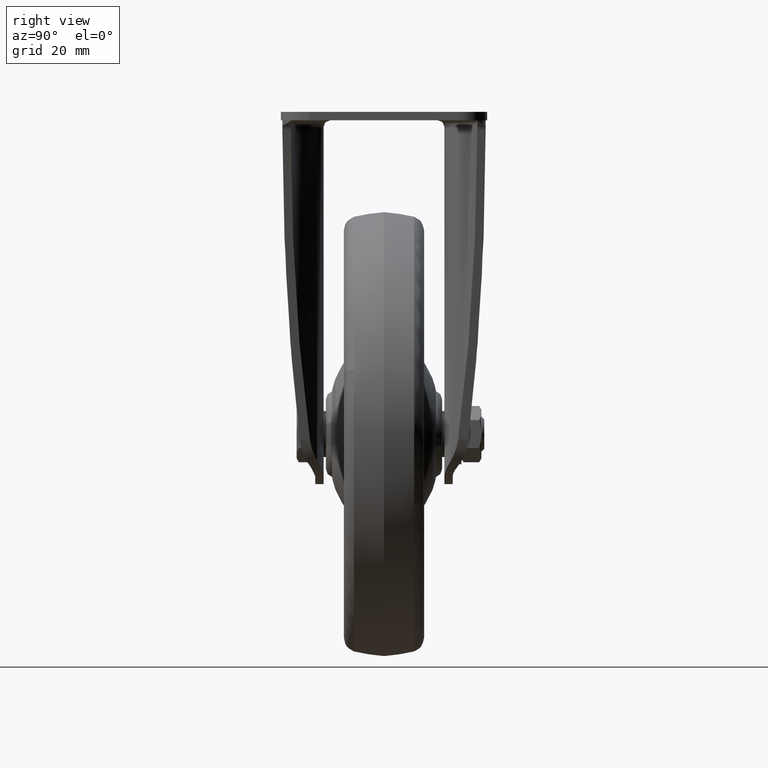
[diagram: clean part render]
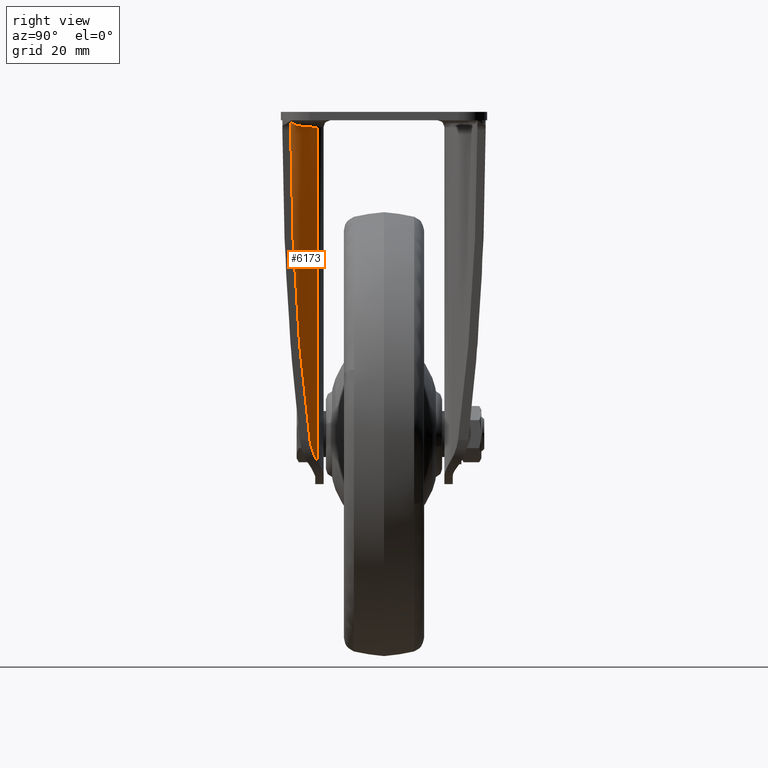
[diagram: same view with one face highlighted and labeled with its STEP entity id]
A machine part, right view. The second image highlights one B-rep face of the part: STEP entity #6173.
In plain terms, the highlighted face is a freeform B-spline surface patch.
Its self-contained STEP definition (entity closure, byte-faithful):
#6050=CARTESIAN_POINT('',(42.637720913554681,-32.400644710330866,-124.621251208632020));
#6051=CARTESIAN_POINT('',(42.637720913554681,-32.400644710330866,0.006965271787664));
#6052=CARTESIAN_POINT('',(26.281486023279058,-34.182363450477844,-124.621251208632070));
#6053=CARTESIAN_POINT('',(26.281486023279058,-34.182363450477844,0.006965271787664));
#6054=CARTESIAN_POINT('',(14.762208308281577,-22.434717627606652,-124.621251208632060));
#6055=CARTESIAN_POINT('',(14.762208308281577,-22.434717627606652,0.006965271787664));
#6063=(BOUNDED_SURFACE()B_SPLINE_SURFACE(1,2,((#6050,#6052,#6054),(#6051,#6053,#6055)),.UNSPECIFIED.,.F.,.F.,.U.)B_SPLINE_SURFACE_WITH_KNOTS((2,2),(3,3),(0.0,124.628216480419700),(0.0,31.167313903874351),.UNSPECIFIED.)GEOMETRIC_REPRESENTATION_ITEM()RATIONAL_B_SPLINE_SURFACE(((0.999946275335467,0.895636312327099,0.991178777298536),(0.999946275335467,0.895636312327099,0.991178777298536)))REPRESENTATION_ITEM('')SURFACE());
#6064=CARTESIAN_POINT('',(15.730752477171750,-23.383727189545400,-121.655677943184800));
#6065=VERTEX_POINT('',#6064);
#6066=CARTESIAN_POINT('',(15.730752315171600,-23.383727361634250,-5.400000000000000));
#6067=VERTEX_POINT('',#6066);
#6068=CARTESIAN_POINT('',(15.730752477171750,-23.383727189545400,-121.655677943184800));
#6069=CARTESIAN_POINT('',(15.730752315171600,-23.383727361634250,-5.400000000000000));
#6070=QUASI_UNIFORM_CURVE('',1,(#6068,#6069),.UNSPECIFIED.,.F.,.U.);
#6071=EDGE_CURVE('',#6065,#6067,#6070,.T.);
#6072=ORIENTED_EDGE('',*,*,#6071,.T.);
#6073=CARTESIAN_POINT('',(41.298409286321650,-32.519617449946097,-3.032747325295746));
#6074=VERTEX_POINT('',#6073);
#6075=CARTESIAN_POINT('',(15.730752315171600,-23.383727361634250,-5.400000000000000));
#6076=CARTESIAN_POINT('',(15.922807297049950,-23.562109029408472,-5.399439889861518));
#6077=CARTESIAN_POINT('',(16.309748464332781,-23.921502001542532,-5.398311412648005));
#6078=CARTESIAN_POINT('',(16.910247996193402,-24.447036667447261,-5.389353626556289));
#6079=CARTESIAN_POINT('',(17.530996587678661,-24.966594997966720,-5.375105153388163));
#6080=CARTESIAN_POINT('',(18.173343539121021,-25.478000722719990,-5.355021872856443));
#6081=CARTESIAN_POINT('',(18.837113898136760,-25.980638385096292,-5.329252741640003));
#6082=CARTESIAN_POINT('',(19.522508933541470,-26.473433022813801,-5.297756962283851));
#6083=CARTESIAN_POINT('',(20.229583368489610,-26.955404100137908,-5.260545674802236));
#6084=CARTESIAN_POINT('',(20.958385961316850,-27.425514857606100,-5.217615811372290));
#6085=CARTESIAN_POINT('',(21.708918504550930,-27.882714640359350,-5.168968170514868));
#6086=CARTESIAN_POINT('',(22.481144502059951,-28.325928573651819,-5.114602571706789));
#6087=CARTESIAN_POINT('',(23.274984195423659,-28.754061778768310,-5.054518803114743));
#6088=CARTESIAN_POINT('',(24.090313496093280,-29.165999832463001,-4.988717800205347));
#6089=CARTESIAN_POINT('',(24.926961169020529,-29.560610180916729,-4.917195851775190));
#6090=CARTESIAN_POINT('',(25.784709095298219,-29.936744360515601,-4.839967005022359));
#6091=CARTESIAN_POINT('',(26.663281847604502,-30.293236751237369,-4.756977730288496));
#6092=CARTESIAN_POINT('',(27.550960714859510,-30.624655251743889,-4.669555821688716));
#6093=CARTESIAN_POINT('',(28.464419774247350,-30.936913346825069,-4.575348727146877));
#6094=CARTESIAN_POINT('',(29.421144258546288,-31.233733492641718,-4.472501298314088));
#6095=CARTESIAN_POINT('',(30.451110224863541,-31.519111989076549,-4.358220338158330));
#6096=CARTESIAN_POINT('',(31.554980593457479,-31.786655270733419,-4.232441699329176));
#6097=CARTESIAN_POINT('',(32.733102506101417,-32.029509463225793,-4.095180597514500));
#6098=CARTESIAN_POINT('',(33.985432869274902,-32.240404583119883,-3.946430602856889));
#6099=CARTESIAN_POINT('',(35.311456296631000,-32.411518413121087,-3.786188177078561));
#6100=CARTESIAN_POINT('',(36.710152733595372,-32.535113801831351,-3.614465426936037));
#6101=CARTESIAN_POINT('',(38.179736867050103,-32.601101911121489,-3.431205760809468));
#6102=CARTESIAN_POINT('',(39.718300400483919,-32.606959691522093,-3.236630597485215));
#6103=CARTESIAN_POINT('',(40.764230285810541,-32.549144778978103,-3.101673058006109));
#6104=CARTESIAN_POINT('',(41.298409286321650,-32.519617449946097,-3.032747325295746));
#6105=B_SPLINE_CURVE_WITH_KNOTS('',3,(#6075,#6076,#6077,#6078,#6079,#6080,#6081,#6082,#6083,#6084,#6085,#6086,#6087,#6088,#6089,#6090,#6091,#6092,#6093,#6094,#6095,#6096,#6097,#6098,#6099,#6100,#6101,#6102,#6103,#6104),.UNSPECIFIED.,.F.,.U.,(4,1,1,1,1,1,1,1,1,1,1,1,1,1,1,1,1,1,1,1,1,1,1,1,1,1,1,4),(0.0,0.028029023199483,0.056471239894599,0.085328047622673,0.114600784494168,0.144290732335673,0.174399119640346,0.204927124338669,0.235875876401604,0.267246460287288,0.299039917241709,0.331257247463038,0.363899412138615,0.396967335362956,0.430461905944589,0.464383979108927,0.498734378103923,0.532205421057389,0.568094638789672,0.606402750946028,0.647130340484765,0.690277883790942,0.735845772808232,0.783834331598362,0.834243828930119,0.887074487987443,0.942326493952767,0.999999987468779),.UNSPECIFIED.);
#6106=EDGE_CURVE('',#6067,#6074,#6105,.T.);
#6107=ORIENTED_EDGE('',*,*,#6106,.T.);
#6108=CARTESIAN_POINT('',(38.384969815767107,-32.595007900842553,-6.183895033378170));
#6109=VERTEX_POINT('',#6108);
#6110=CARTESIAN_POINT('',(41.298409286321650,-32.519617449946097,-3.032747325295746));
#6111=CARTESIAN_POINT('',(41.207450963793143,-32.525890498321353,-3.056783286053076));
#6112=CARTESIAN_POINT('',(41.117017264635351,-32.531758695251050,-3.084109068419347));
#6113=CARTESIAN_POINT('',(40.937233256391167,-32.542710075004003,-3.145532705763793));
#6114=CARTESIAN_POINT('',(40.848630032038663,-32.547746625674087,-3.179389171691061));
#6115=CARTESIAN_POINT('',(40.588120118234322,-32.561566719720041,-3.289603975030020));
#6116=CARTESIAN_POINT('',(40.420825581268019,-32.569103975307542,-3.374790154872280));
#6117=CARTESIAN_POINT('',(40.179350613423047,-32.578328154519063,-3.519916417402330));
#6118=CARTESIAN_POINT('',(40.100442597902287,-32.581055196169729,-3.571193651511676));
#6119=CARTESIAN_POINT('',(39.945848247162900,-32.585879461661158,-3.679645399064150));
#6120=CARTESIAN_POINT('',(39.869945950118357,-32.587981779648779,-3.736997726281451));
#6121=CARTESIAN_POINT('',(39.648726364527299,-32.593402866833259,-3.916947985868772));
#6122=CARTESIAN_POINT('',(39.511399484578611,-32.595811119015814,-4.046037006397528));
#6123=CARTESIAN_POINT('',(39.256330415056361,-32.598958602200682,-4.321804332312839));
#6124=CARTESIAN_POINT('',(39.138589459364262,-32.599695462538961,-4.468483770940793));
#6125=CARTESIAN_POINT('',(38.977023507990722,-32.600007606196321,-4.702010074444416));
#6126=CARTESIAN_POINT('',(38.925511126649198,-32.599977821738221,-4.782432865777074));
#6127=CARTESIAN_POINT('',(38.828992581478353,-32.599727274470162,-4.945660095635747));
#6128=CARTESIAN_POINT('',(38.783871242969717,-32.599507721775318,-5.028581506154583));
#6129=CARTESIAN_POINT('',(38.657714899183723,-32.598676855098397,-5.281183583136452));
#6130=CARTESIAN_POINT('',(38.585842814122863,-32.597897574823037,-5.454683454148708));
#6131=CARTESIAN_POINT('',(38.496399839276428,-32.596741011179063,-5.722589283979142));
#6132=CARTESIAN_POINT('',(38.469657549517002,-32.596356411701983,-5.813171886302117));
#6133=CARTESIAN_POINT('',(38.422460550697437,-32.595635189073903,-5.996958397332588));
#6134=CARTESIAN_POINT('',(38.402021168666550,-32.595298753169367,-6.090188180265298));
#6135=CARTESIAN_POINT('',(38.384969815767107,-32.595007900842553,-6.183895033378170));
#6136=B_SPLINE_CURVE_WITH_KNOTS('',3,(#6110,#6111,#6112,#6113,#6114,#6115,#6116,#6117,#6118,#6119,#6120,#6121,#6122,#6123,#6124,#6125,#6126,#6127,#6128,#6129,#6130,#6131,#6132,#6133,#6134,#6135),.UNSPECIFIED.,.F.,.U.,(4,2,2,2,2,2,2,2,2,2,2,2,4),(0.000000262983476,0.062499999999995,0.124999999999991,0.249999999999986,0.312499999999985,0.374999999999985,0.499999999999987,0.624999999999990,0.687499999999992,0.749999999999995,0.874999999999998,0.937499999999999,1.0),.UNSPECIFIED.);
#6137=EDGE_CURVE('',#6074,#6109,#6136,.T.);
#6138=ORIENTED_EDGE('',*,*,#6137,.T.);
#6139=CARTESIAN_POINT('',(18.693041999999998,-25.869434927408051,-114.401499000000000));
#6140=VERTEX_POINT('',#6139);
#6141=CARTESIAN_POINT('',(18.693041999999881,-25.869434927408040,-114.401499000000300));
#6142=CARTESIAN_POINT('',(27.454555956551655,-32.407402212220717,-66.252325573771657));
#6143=CARTESIAN_POINT('',(38.384969815767100,-32.595007900842532,-6.183895033378179));
#6151=(BOUNDED_CURVE()B_SPLINE_CURVE(2,(#6141,#6142,#6143),.UNSPECIFIED.,.F.,.U.)CURVE()GEOMETRIC_REPRESENTATION_ITEM()QUASI_UNIFORM_CURVE()RATIONAL_B_SPLINE_CURVE((1.0,0.951735065975764,1.0))REPRESENTATION_ITEM(''));
#6152=EDGE_CURVE('',#6140,#6109,#6151,.T.);
#6153=ORIENTED_EDGE('',*,*,#6152,.F.);
#6154=CARTESIAN_POINT('',(18.693041999999899,-25.869434927408001,-114.401499000000000));
#6155=CARTESIAN_POINT('',(18.568796021462560,-25.776720797524170,-115.084297015401400));
#6156=CARTESIAN_POINT('',(18.409425329281799,-25.656559718242100,-115.748414235665290));
#6157=CARTESIAN_POINT('',(18.026648684125529,-25.360297401389829,-117.041053012379190));
#6158=CARTESIAN_POINT('',(17.803208526256601,-25.184180879248810,-117.669559361264900));
#6159=CARTESIAN_POINT('',(17.423157648436010,-24.874422530908380,-118.585704782148600));
#6160=CARTESIAN_POINT('',(17.288980114934969,-24.763544691794099,-118.886639676483600));
#6161=CARTESIAN_POINT('',(17.076785603700209,-24.585085584255861,-119.331290449633700));
#6162=CARTESIAN_POINT('',(17.004220147532951,-24.523560592169940,-119.478382282141990));
#6163=CARTESIAN_POINT('',(16.856644127574398,-24.397315858285879,-119.768125167504910));
#6164=CARTESIAN_POINT('',(16.781501344765559,-24.332485573089389,-119.911059618186500));
#6165=CARTESIAN_POINT('',(16.399375441090530,-23.999738387687131,-120.616249087952400));
#6166=CARTESIAN_POINT('',(16.073202034100920,-23.706101102823460,-121.150126794404200));
#6167=CARTESIAN_POINT('',(15.730752403474050,-23.383727444760002,-121.655678051983300));
#6168=B_SPLINE_CURVE_WITH_KNOTS('',3,(#6154,#6155,#6156,#6157,#6158,#6159,#6160,#6161,#6162,#6163,#6164,#6165,#6166,#6167),.UNSPECIFIED.,.F.,.U.,(4,2,2,2,2,2,4),(0.0,0.249999999999997,0.499999999999994,0.624999999999992,0.687499999999993,0.749999999999995,1.0),.UNSPECIFIED.);
#6169=EDGE_CURVE('',#6140,#6065,#6168,.T.);
#6170=ORIENTED_EDGE('',*,*,#6169,.T.);
#6171=EDGE_LOOP('',(#6072,#6107,#6138,#6153,#6170));
#6172=FACE_OUTER_BOUND('',#6171,.T.);
#6173=ADVANCED_FACE('',(#6172),#6063,.F.);